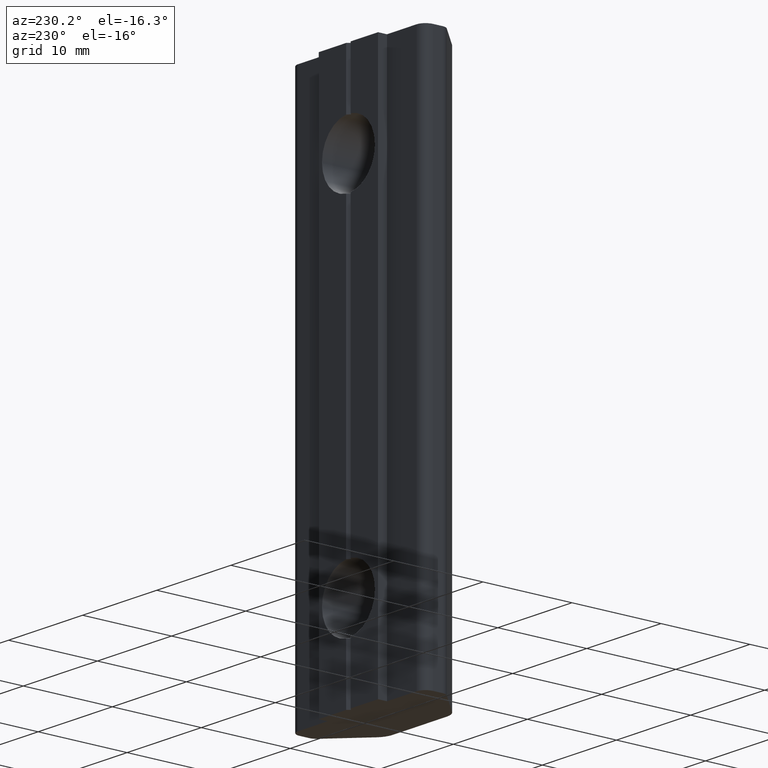
[diagram: clean part render]
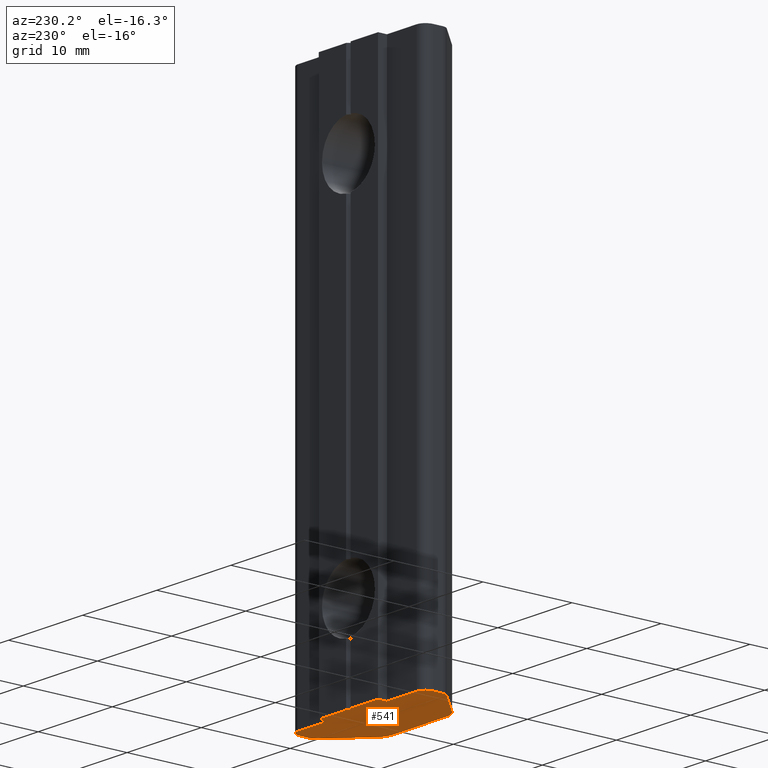
[diagram: same view with one face highlighted and labeled with its STEP entity id]
A machine part, auxiliary view. The second image highlights one B-rep face of the part: STEP entity #541.
In plain terms, the highlighted planar face has unit normal (0, 0, 1).
Its self-contained STEP definition (entity closure, byte-faithful):
#254=CARTESIAN_POINT('',(3.999999999999999,1.796296336915756,-30.0));
#255=VERTEX_POINT('',#254);
#262=CARTESIAN_POINT('',(0.300000000000001,1.796296336915752,-30.0));
#263=VERTEX_POINT('',#262);
#264=CARTESIAN_POINT('',(3.999999999999999,1.796296336915756,-30.0));
#265=DIRECTION('',(-1.0,0.0,0.0));
#266=VECTOR('',#265,3.699999999999998);
#267=LINE('',#264,#266);
#268=EDGE_CURVE('',#255,#263,#267,.T.);
#293=CARTESIAN_POINT('',(2.884628E-016,1.496296336915752,-30.0));
#294=VERTEX_POINT('',#293);
#295=CARTESIAN_POINT('',(0.300000000000001,1.796296336915752,-30.0));
#296=DIRECTION('',(-0.707106781186549,-0.707106781186546,0.0));
#297=VECTOR('',#296,0.424264068711930);
#298=LINE('',#295,#297);
#299=EDGE_CURVE('',#263,#294,#298,.T.);
#358=CARTESIAN_POINT('',(-0.300000000000000,1.796296336915752,-30.0));
#359=VERTEX_POINT('',#358);
#360=CARTESIAN_POINT('',(2.884628E-016,1.496296336915752,-30.0));
#361=DIRECTION('',(-0.707106781186548,0.707106781186547,0.0));
#362=VECTOR('',#361,0.424264068711929);
#363=LINE('',#360,#362);
#364=EDGE_CURVE('',#294,#359,#363,.T.);
#399=CARTESIAN_POINT('',(6.071532E-016,-1.802113305039203,-30.0));
#400=DIRECTION('',(0.0,0.0,1.0));
#401=DIRECTION('',(1.0,0.0,0.0));
#402=AXIS2_PLACEMENT_3D('',#399,#400,#401);
#403=PLANE('',#402);
#404=CARTESIAN_POINT('',(-3.999999999999999,1.796296336915755,-30.0));
#405=VERTEX_POINT('',#404);
#406=CARTESIAN_POINT('',(-3.999999999999999,0.796296336915755,-30.0));
#407=VERTEX_POINT('',#406);
#408=CARTESIAN_POINT('',(-3.999999999999999,1.796296336915755,-30.0));
#409=DIRECTION('',(0.0,-1.0,0.0));
#410=VECTOR('',#409,1.0);
#411=LINE('',#408,#410);
#412=EDGE_CURVE('',#405,#407,#411,.T.);
#413=ORIENTED_EDGE('',*,*,#412,.F.);
#414=CARTESIAN_POINT('',(-0.300000000000000,1.796296336915752,-30.0));
#415=DIRECTION('',(-1.0,0.0,0.0));
#416=VECTOR('',#415,3.699999999999999);
#417=LINE('',#414,#416);
#418=EDGE_CURVE('',#359,#405,#417,.T.);
#419=ORIENTED_EDGE('',*,*,#418,.F.);
#420=ORIENTED_EDGE('',*,*,#364,.F.);
#421=ORIENTED_EDGE('',*,*,#299,.F.);
#422=ORIENTED_EDGE('',*,*,#268,.F.);
#423=CARTESIAN_POINT('',(4.000000000000000,0.796296336915756,-30.0));
#424=VERTEX_POINT('',#423);
#425=CARTESIAN_POINT('',(4.000000000000000,0.796296336915756,-30.0));
#426=DIRECTION('',(0.0,1.0,0.0));
#427=VECTOR('',#426,1.000000000000000);
#428=LINE('',#425,#427);
#429=EDGE_CURVE('',#424,#255,#428,.T.);
#430=ORIENTED_EDGE('',*,*,#429,.F.);
#431=CARTESIAN_POINT('',(8.0,0.796296336915754,-30.0));
#432=VERTEX_POINT('',#431);
#433=CARTESIAN_POINT('',(8.0,0.796296336915754,-30.0));
#434=DIRECTION('',(-1.0,0.0,0.0));
#435=VECTOR('',#434,4.0);
#436=LINE('',#433,#435);
#437=EDGE_CURVE('',#432,#424,#436,.T.);
#438=ORIENTED_EDGE('',*,*,#437,.F.);
#439=CARTESIAN_POINT('',(9.0,-0.203703663084246,-30.0));
#440=VERTEX_POINT('',#439);
#441=CARTESIAN_POINT('',(7.999999999999999,-0.203703663084247,-30.0));
#442=DIRECTION('',(0.0,0.0,1.0));
#443=DIRECTION('',(-1.0,0.0,0.0));
#444=AXIS2_PLACEMENT_3D('',#441,#442,#443);
#445=CIRCLE('',#444,1.000000000000001);
#446=EDGE_CURVE('',#440,#432,#445,.T.);
#447=ORIENTED_EDGE('',*,*,#446,.F.);
#448=CARTESIAN_POINT('',(9.000000000000002,-1.289490100711146,-30.0));
#449=VERTEX_POINT('',#448);
#450=CARTESIAN_POINT('',(9.000000000000002,-1.289490100711146,-30.0));
#451=DIRECTION('',(0.0,1.0,0.0));
#452=VECTOR('',#451,1.085786437626901);
#453=LINE('',#450,#452);
#454=EDGE_CURVE('',#449,#440,#453,.T.);
#455=ORIENTED_EDGE('',*,*,#454,.F.);
#456=CARTESIAN_POINT('',(8.707106781186550,-1.996596881897696,-30.0));
#457=VERTEX_POINT('',#456);
#458=CARTESIAN_POINT('',(8.000000000000004,-1.289490100711149,-30.0));
#459=DIRECTION('',(0.0,0.0,1.0));
#460=DIRECTION('',(-0.707106781186547,0.707106781186548,0.0));
#461=AXIS2_PLACEMENT_3D('',#458,#459,#460);
#462=CIRCLE('',#461,0.999999999999998);
#463=EDGE_CURVE('',#457,#449,#462,.T.);
#464=ORIENTED_EDGE('',*,*,#463,.F.);
#465=CARTESIAN_POINT('',(5.085786437626904,-5.617917225457337,-30.0));
#466=VERTEX_POINT('',#465);
#467=CARTESIAN_POINT('',(5.085786437626904,-5.617917225457337,-30.0));
#468=DIRECTION('',(0.707106781186548,0.707106781186547,0.0));
#469=VECTOR('',#468,5.121320343559643);
#470=LINE('',#467,#469);
#471=EDGE_CURVE('',#466,#457,#470,.T.);
#472=ORIENTED_EDGE('',*,*,#471,.F.);
#473=CARTESIAN_POINT('',(3.671572875253811,-6.203703663084240,-30.0));
#474=VERTEX_POINT('',#473);
#475=CARTESIAN_POINT('',(3.671572875253810,-4.203703663084239,-30.0));
#476=DIRECTION('',(0.0,0.0,1.0));
#477=DIRECTION('',(0.0,1.0,0.0));
#478=AXIS2_PLACEMENT_3D('',#475,#476,#477);
#479=CIRCLE('',#478,2.000000000000001);
#480=EDGE_CURVE('',#474,#466,#479,.T.);
#481=ORIENTED_EDGE('',*,*,#480,.F.);
#482=CARTESIAN_POINT('',(-3.671572875253810,-6.203703663084241,-30.0));
#483=VERTEX_POINT('',#482);
#484=CARTESIAN_POINT('',(-3.671572875253810,-6.203703663084241,-30.0));
#485=DIRECTION('',(1.0,0.0,0.0));
#486=VECTOR('',#485,7.343145750507620);
#487=LINE('',#484,#486);
#488=EDGE_CURVE('',#483,#474,#487,.T.);
#489=ORIENTED_EDGE('',*,*,#488,.F.);
#490=CARTESIAN_POINT('',(-5.085786437626903,-5.617917225457337,-30.0));
#491=VERTEX_POINT('',#490);
#492=CARTESIAN_POINT('',(-3.671572875253812,-4.203703663084248,-30.0));
#493=DIRECTION('',(0.0,0.0,1.0));
#494=DIRECTION('',(0.707106781186549,0.707106781186547,0.0));
#495=AXIS2_PLACEMENT_3D('',#492,#493,#494);
#496=CIRCLE('',#495,1.999999999999993);
#497=EDGE_CURVE('',#491,#483,#496,.T.);
#498=ORIENTED_EDGE('',*,*,#497,.F.);
#499=CARTESIAN_POINT('',(-8.707106781186548,-1.996596881897697,-30.0));
#500=VERTEX_POINT('',#499);
#501=CARTESIAN_POINT('',(-8.707106781186548,-1.996596881897697,-30.0));
#502=DIRECTION('',(0.707106781186548,-0.707106781186547,0.0));
#503=VECTOR('',#502,5.121320343559642);
#504=LINE('',#501,#503);
#505=EDGE_CURVE('',#500,#491,#504,.T.);
#506=ORIENTED_EDGE('',*,*,#505,.F.);
#507=CARTESIAN_POINT('',(-9.0,-1.289490100711149,-30.0));
#508=VERTEX_POINT('',#507);
#509=CARTESIAN_POINT('',(-8.000000000000005,-1.289490100711151,-30.0));
#510=DIRECTION('',(0.0,0.0,1.0));
#511=DIRECTION('',(1.0,0.0,0.0));
#512=AXIS2_PLACEMENT_3D('',#509,#510,#511);
#513=CIRCLE('',#512,0.999999999999995);
#514=EDGE_CURVE('',#508,#500,#513,.T.);
#515=ORIENTED_EDGE('',*,*,#514,.F.);
#516=CARTESIAN_POINT('',(-9.0,-0.203703663084248,-30.0));
#517=VERTEX_POINT('',#516);
#518=CARTESIAN_POINT('',(-9.0,-0.203703663084248,-30.0));
#519=DIRECTION('',(0.0,-1.0,0.0));
#520=VECTOR('',#519,1.085786437626900);
#521=LINE('',#518,#520);
#522=EDGE_CURVE('',#517,#508,#521,.T.);
#523=ORIENTED_EDGE('',*,*,#522,.F.);
#524=CARTESIAN_POINT('',(-8.0,0.796296336915751,-30.0));
#525=VERTEX_POINT('',#524);
#526=CARTESIAN_POINT('',(-7.999999999999998,-0.203703663084250,-30.0));
#527=DIRECTION('',(0.0,0.0,1.0));
#528=DIRECTION('',(0.0,-1.0,0.0));
#529=AXIS2_PLACEMENT_3D('',#526,#527,#528);
#530=CIRCLE('',#529,1.000000000000001);
#531=EDGE_CURVE('',#525,#517,#530,.T.);
#532=ORIENTED_EDGE('',*,*,#531,.F.);
#533=CARTESIAN_POINT('',(-3.999999999999999,0.796296336915755,-30.0));
#534=DIRECTION('',(-1.0,0.0,0.0));
#535=VECTOR('',#534,4.000000000000002);
#536=LINE('',#533,#535);
#537=EDGE_CURVE('',#407,#525,#536,.T.);
#538=ORIENTED_EDGE('',*,*,#537,.F.);
#539=EDGE_LOOP('',(#413,#419,#420,#421,#422,#430,#438,#447,#455,#464,#472,#481,#489,#498,#506,#515,#523,#532,#538));
#540=FACE_OUTER_BOUND('',#539,.T.);
#541=ADVANCED_FACE('',(#540),#403,.F.);